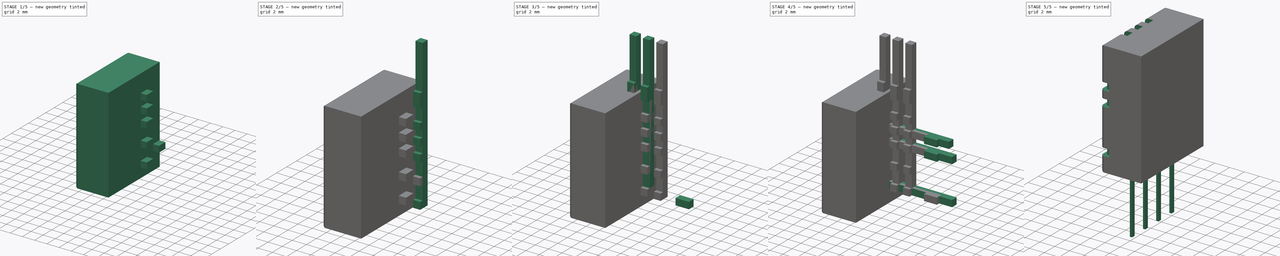
[diagram: build sequence overview — one tinted view per stage of 5, left to right]
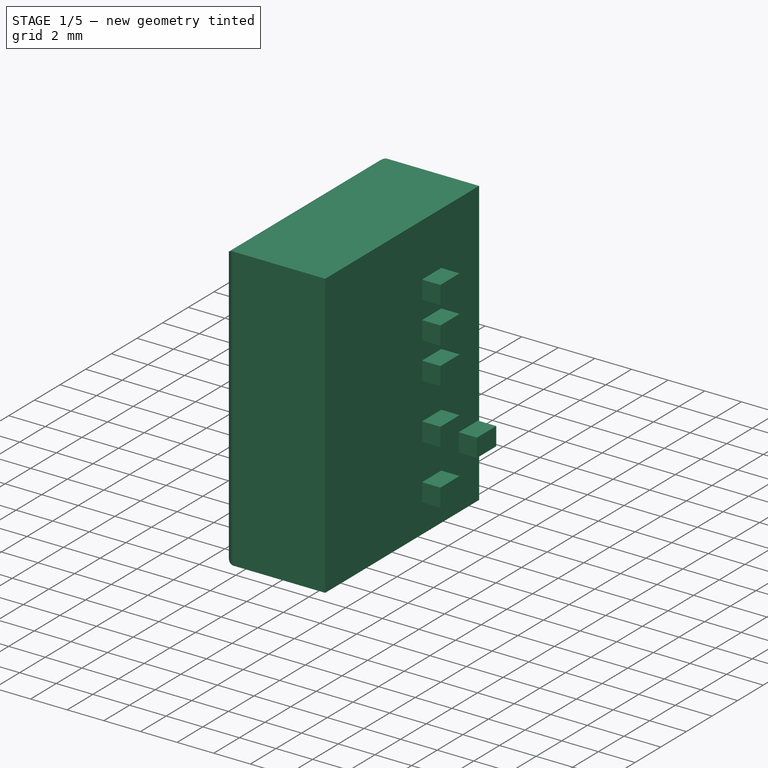
[diagram: stage 1 of 5 — iso view after this stage's code; geometry added in this stage tinted green]
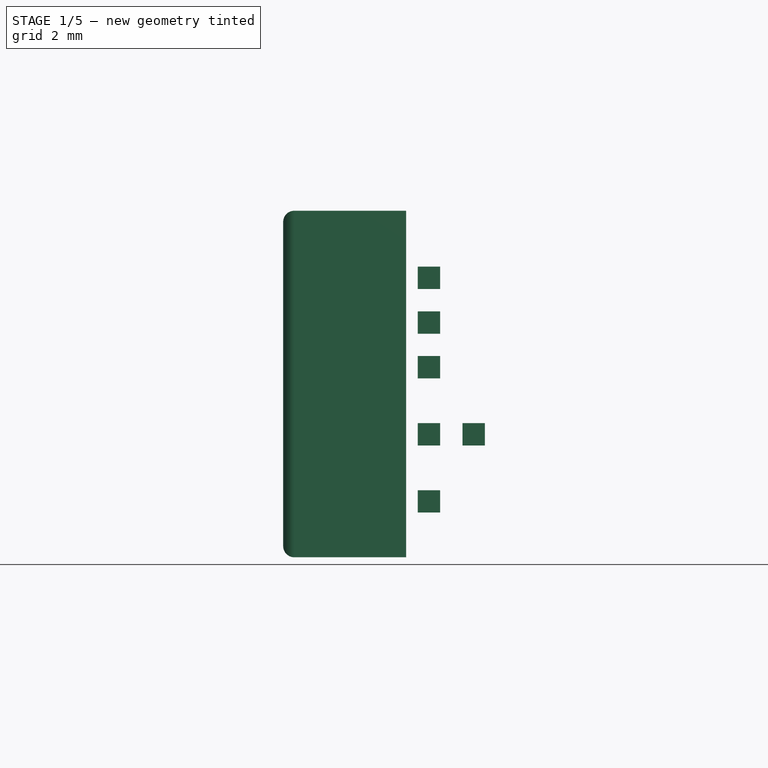
[diagram: stage 1 of 5 — front view after this stage's code; geometry added in this stage tinted green]
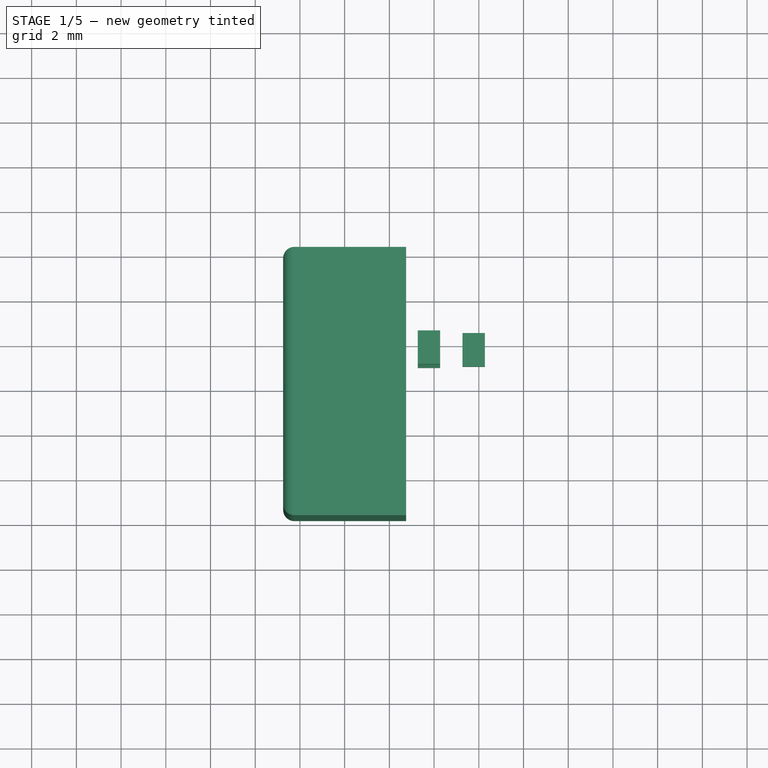
[diagram: stage 1 of 5 — top view after this stage's code; geometry added in this stage tinted green]
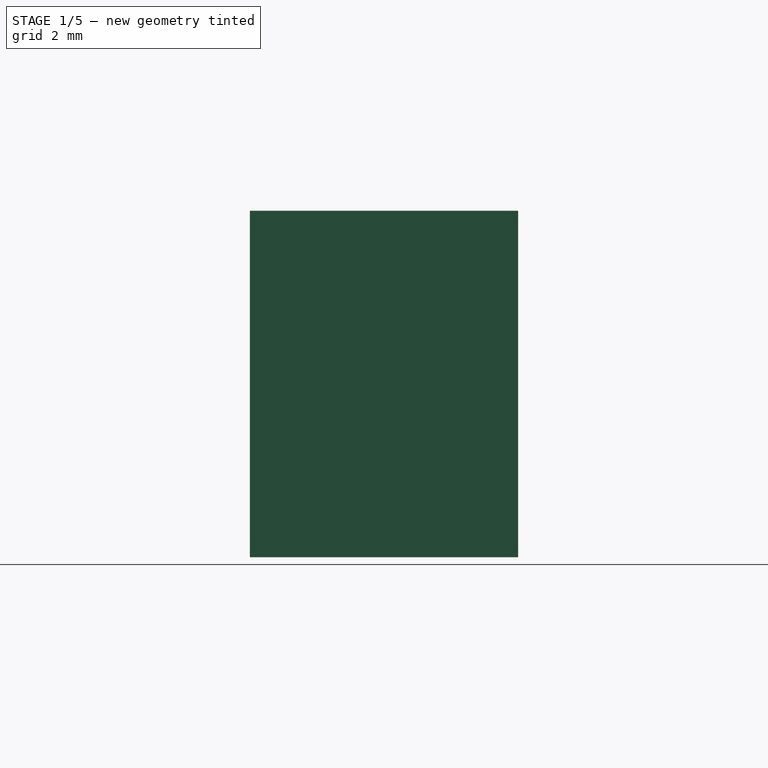
[diagram: stage 1 of 5 — right view after this stage's code; geometry added in this stage tinted green]
FCSTD DOCUMENT  (FreeCAD 0.17R11223 (Git))
Label: Aosong_DHT11_5.5x12.0_P2.54mm
License: All rights reserved
LicenseURL: http://en.wikipedia.org/wiki/All_rights_reserved
objects: Part::Box×36, Part::MultiFuse×8, Sketcher::SketchObject×1, PartDesign::Pad×1, PartDesign::Body×1, Part::Fillet×1, Part::Cut×1
note: 50 computed .brp shape members not serialized (recipe doc carries the construction recipe); baked Part::Feature solids carry a one-line shape summary decoded from their .brp

FEATURE [Sketcher::SketchObject] Sketch
  MapMode = 5
  Support = -> [XY_Plane]
  sketch-geometry (4):
    g0: LineSegment StartX=-2.75 StartY=2.19 StartZ=0 EndX=2.75 EndY=2.19 EndZ=0
    g1: LineSegment StartX=2.75 StartY=2.19 StartZ=0 EndX=2.75 EndY=-9.81 EndZ=0
    g2: LineSegment StartX=2.75 StartY=-9.81 StartZ=0 EndX=-2.75 EndY=-9.81 EndZ=0
    g3: LineSegment StartX=-2.75 StartY=-9.81 StartZ=0 EndX=-2.75 EndY=2.19 EndZ=0
  constraints (12):
    c: Coincident(g0,g1)
    c: Coincident(g1,g2)
    c: Coincident(g2,g3)
    c: Coincident(g3,g0)
    c: Horizontal(g0)
    c: Horizontal(g2)
    c: Vertical(g1)
    c: Vertical(g3)
    c: DistanceX(g0,g0) = 5.5
    c: DistanceY(g1,g0) = 12
    c: DistanceY(g-1,g0) = 2.19
    c: DistanceX(g0,g-1) = 2.75
FEATURE [PartDesign::Pad] Pad
  Length = 15.5
  Length2 = 100
  Profile = -> Sketch
  Type = 0
FEATURE [Part::Box] Box027  label="Kub023"
  AttacherType = Attacher::AttachEngine3D
  Height = 1
  Length = 1
  Placement = pos=(1.27,-3,5) rot=(0,0,1;0rad)
  Width = 1.5
FEATURE [Part::Box] Box028  label="Kub024"
  AttacherType = Attacher::AttachEngine3D
  Height = 1
  Length = 1
  Placement = pos=(5.27,-3,5) rot=(0,0,1;0rad)
  Width = 1.5
FEATURE [Part::Box] Box029  label="Kub025"
  AttacherType = Attacher::AttachEngine3D
  Height = 1
  Length = 1
  Placement = pos=(3.27,-3,2) rot=(0,0,1;0rad)
  Width = 1.5
FEATURE [Part::Box] Box030  label="Kub026"
  AttacherType = Attacher::AttachEngine3D
  Height = 1
  Length = 1
  Placement = pos=(3.27,-3,5) rot=(0,0,1;0rad)
  Width = 1.5
FEATURE [Part::Box] Box031  label="Kub027"
  AttacherType = Attacher::AttachEngine3D
  Height = 1
  Length = 1
  Placement = pos=(3.27,-3,8) rot=(0,0,1;0rad)
  Width = 1.5
FEATURE [Part::Box] Box032  label="Kub028"
  AttacherType = Attacher::AttachEngine3D
  Height = 1
  Length = 1
  Placement = pos=(3.27,-3,10) rot=(0,0,1;0rad)
  Width = 1.5
FEATURE [Part::Box] Box033  label="Kub029"
  AttacherType = Attacher::AttachEngine3D
  Height = 1
  Length = 1
  Placement = pos=(3.27,-3,12) rot=(0,0,1;0rad)
  Width = 1.5
FEATURE [Part::Fillet] Fillet
  Base = -> Pad
  Edges = 4 edges r=0.5: [Edge1,Edge8,Edge11,Edge12]
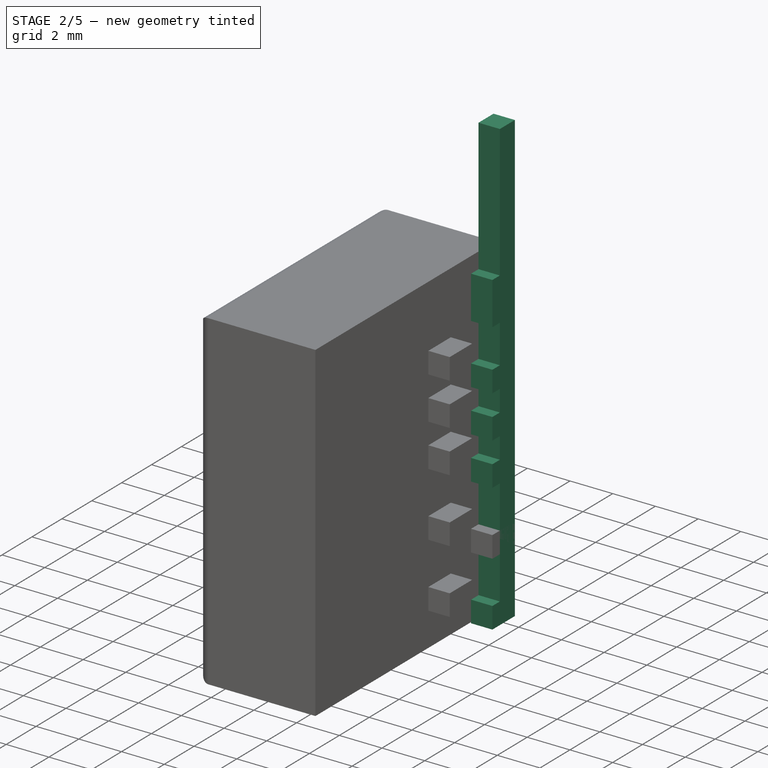
[diagram: stage 2 of 5 — iso view after this stage's code; geometry added in this stage tinted green]
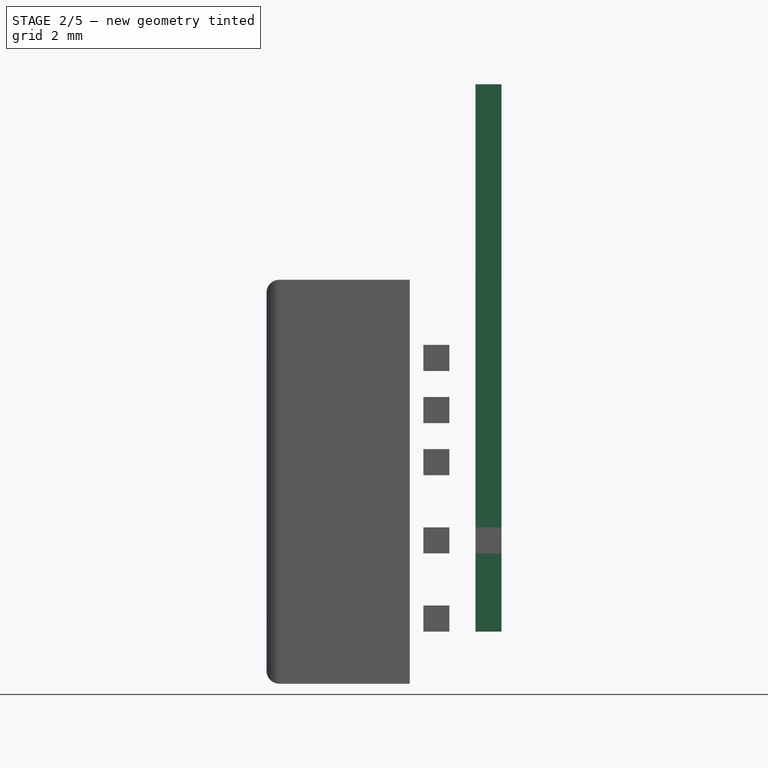
[diagram: stage 2 of 5 — front view after this stage's code; geometry added in this stage tinted green]
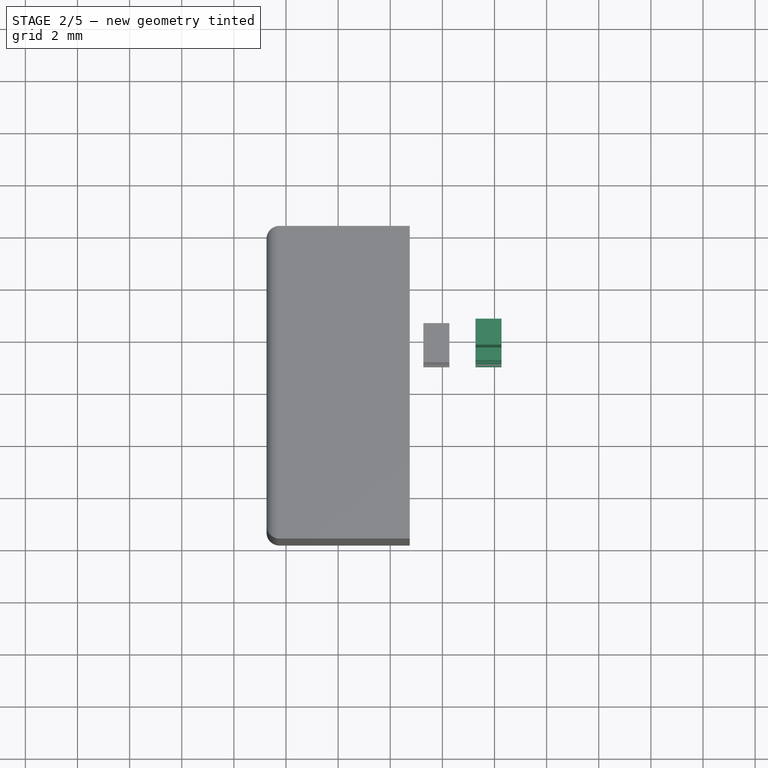
[diagram: stage 2 of 5 — top view after this stage's code; geometry added in this stage tinted green]
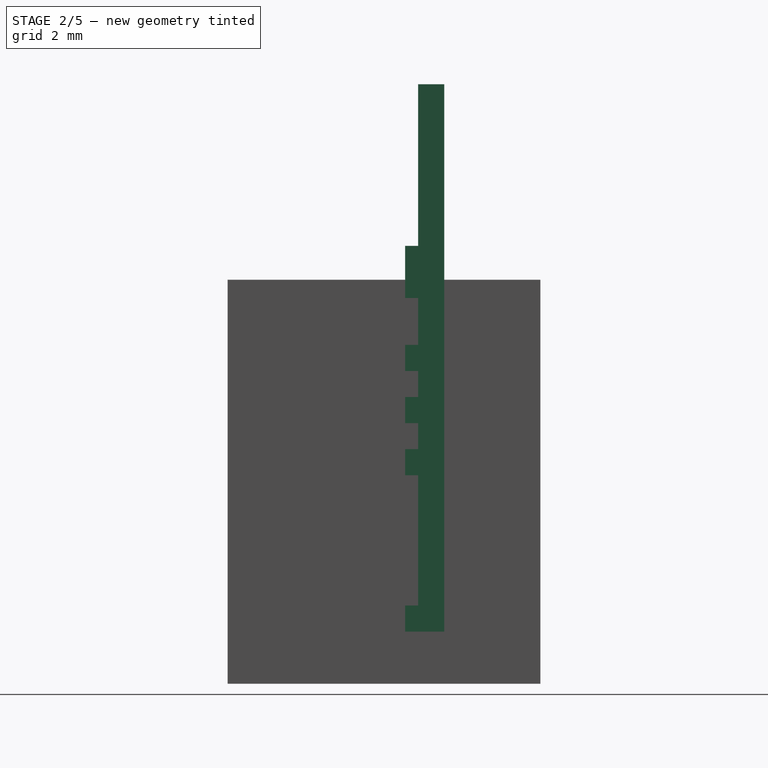
[diagram: stage 2 of 5 — right view after this stage's code; geometry added in this stage tinted green]
FEATURE [Part::Box] Box008  label="Kub004"
  AttacherType = Attacher::AttachEngine3D
  Height = 20
  Length = 1
  Placement = pos=(5.27,-2.5,3) rot=(0,0,1;0rad)
  Width = 1
FEATURE [Part::Box] Box016  label="Kub012"
  AttacherType = Attacher::AttachEngine3D
  Height = 2
  Length = 1
  Placement = pos=(5.27,-3,14.8) rot=(0,0,1;0rad)
  Width = 1
FEATURE [Part::Box] Box019  label="Kub015"
  AttacherType = Attacher::AttachEngine3D
  Height = 1
  Length = 1
  Placement = pos=(5.27,-3,12) rot=(0,0,1;0rad)
  Width = 1.5
FEATURE [Part::Box] Box020  label="Kub016"
  AttacherType = Attacher::AttachEngine3D
  Height = 1
  Length = 1
  Placement = pos=(5.27,-3,10) rot=(0,0,1;0rad)
  Width = 1.5
FEATURE [Part::Box] Box021  label="Kub017"
  AttacherType = Attacher::AttachEngine3D
  Height = 1
  Length = 1
  Placement = pos=(5.27,-3,8) rot=(0,0,1;0rad)
  Width = 1.5
FEATURE [Part::Box] Box022  label="Kub018"
  AttacherType = Attacher::AttachEngine3D
  Height = 1
  Length = 1
  Placement = pos=(5.27,-3,2) rot=(0,0,1;0rad)
  Width = 1.5
FEATURE [Part::Box] Box023  label="Kub019"
  AttacherType = Attacher::AttachEngine3D
  Height = 1
  Length = 1
  Placement = pos=(1.27,-3,12) rot=(0,0,1;0rad)
  Width = 1.5
FEATURE [Part::Box] Box024  label="Kub020"
  AttacherType = Attacher::AttachEngine3D
  Height = 1
  Length = 1
  Placement = pos=(1.27,-3,10) rot=(0,0,1;0rad)
  Width = 1.5
FEATURE [Part::Box] Box025  label="Kub021"
  AttacherType = Attacher::AttachEngine3D
  Height = 1
  Length = 1
  Placement = pos=(1.27,-3,8) rot=(0,0,1;0rad)
  Width = 1.5
FEATURE [Part::Box] Box026  label="Kub022"
  AttacherType = Attacher::AttachEngine3D
  Height = 1
  Length = 1
  Placement = pos=(1.27,-3,2) rot=(0,0,1;0rad)
  Width = 1.5
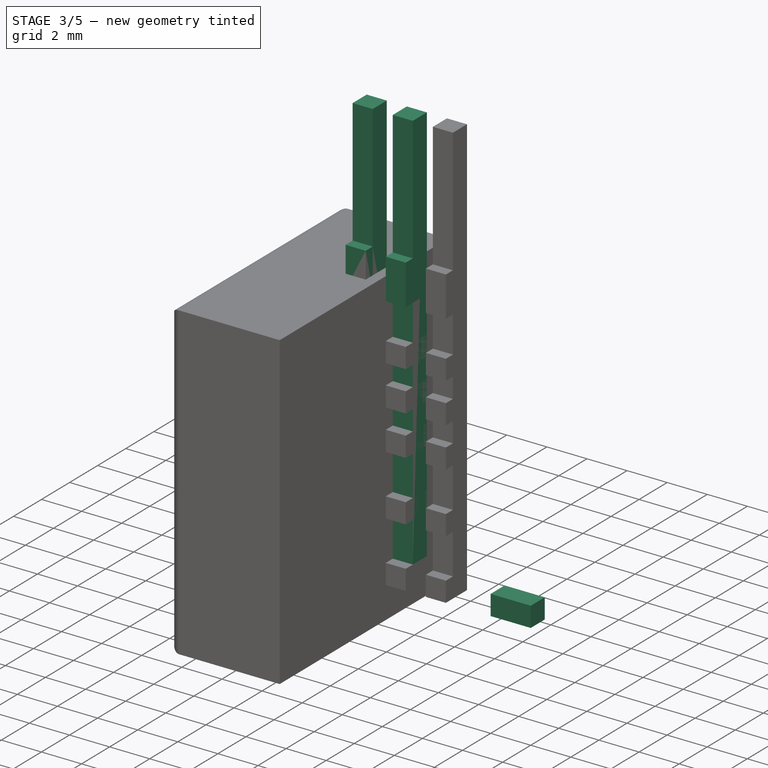
[diagram: stage 3 of 5 — iso view after this stage's code; geometry added in this stage tinted green]
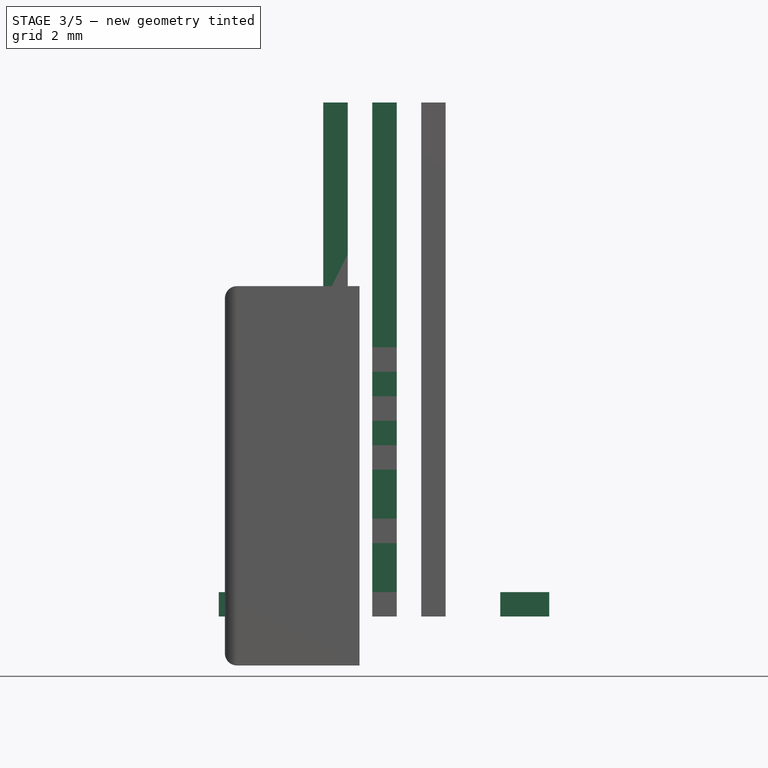
[diagram: stage 3 of 5 — front view after this stage's code; geometry added in this stage tinted green]
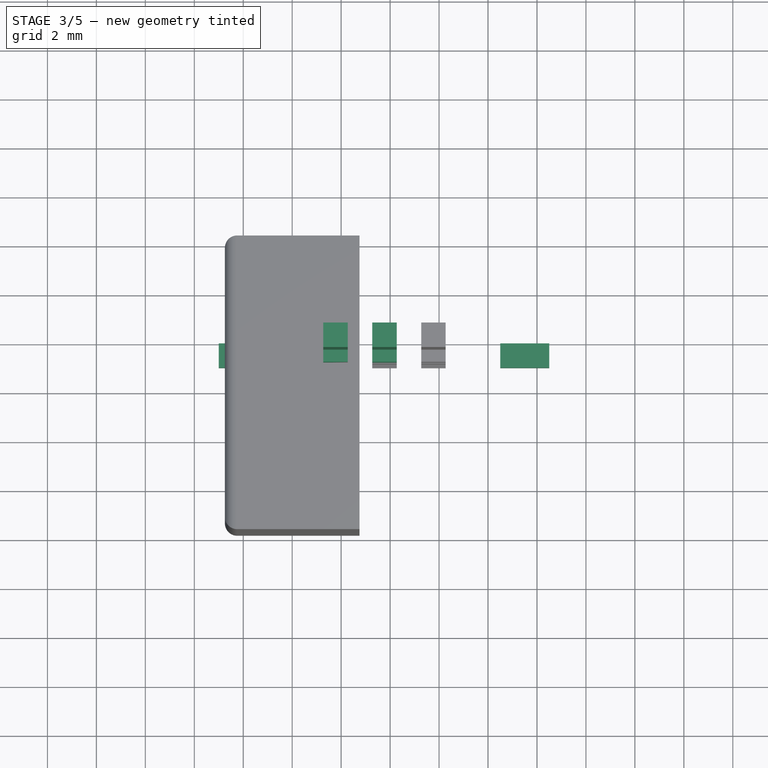
[diagram: stage 3 of 5 — top view after this stage's code; geometry added in this stage tinted green]
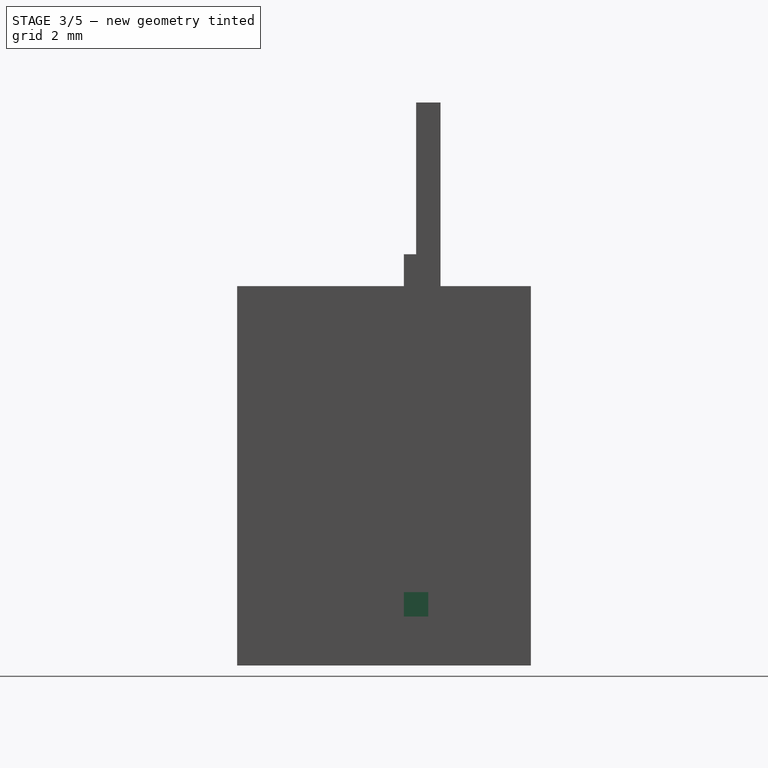
[diagram: stage 3 of 5 — right view after this stage's code; geometry added in this stage tinted green]
FEATURE [Part::Box] Box007  label="Kub003"
  AttacherType = Attacher::AttachEngine3D
  Height = 20
  Length = 1
  Placement = pos=(3.27,-2.5,3) rot=(0,0,1;0rad)
  Width = 1
FEATURE [Part::Box] Box009  label="Kub005"
  AttacherType = Attacher::AttachEngine3D
  Height = 20
  Length = 1
  Placement = pos=(1.27,-2.5,3) rot=(0,0,1;0rad)
  Width = 1
FEATURE [Part::Box] Box010  label="Kub006"
  AttacherType = Attacher::AttachEngine3D
  Height = 1
  Length = 2
  Placement = pos=(-3,-3,2) rot=(0,0,1;0rad)
  Width = 1
FEATURE [Part::Box] Box011  label="Kub007"
  AttacherType = Attacher::AttachEngine3D
  Height = 1
  Length = 2
  Placement = pos=(8.5,-3,2) rot=(0,0,1;0rad)
  Width = 1
FEATURE [Part::Box] Box017  label="Kub013"
  AttacherType = Attacher::AttachEngine3D
  Height = 2
  Length = 1
  Placement = pos=(3.27,-3,14.8) rot=(0,0,1;0rad)
  Width = 1
FEATURE [Part::Box] Box018  label="Kub014"
  AttacherType = Attacher::AttachEngine3D
  Height = 2
  Length = 1
  Placement = pos=(1.27,-3,14.8) rot=(0,0,1;0rad)
  Width = 1
FEATURE [Part::MultiFuse] Fusion003
  Shapes = -> [Box009,Box018]
FEATURE [Part::MultiFuse] Fusion004
  Shapes = -> [Box007,Box017]
FEATURE [Part::MultiFuse] Fusion005
  Shapes = -> [Box008,Box016]
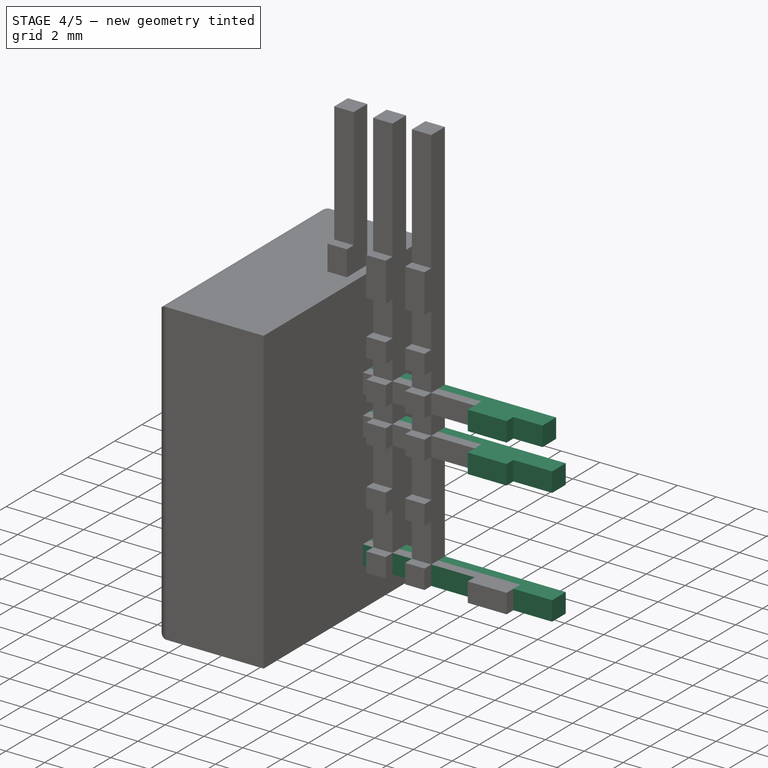
[diagram: stage 4 of 5 — iso view after this stage's code; geometry added in this stage tinted green]
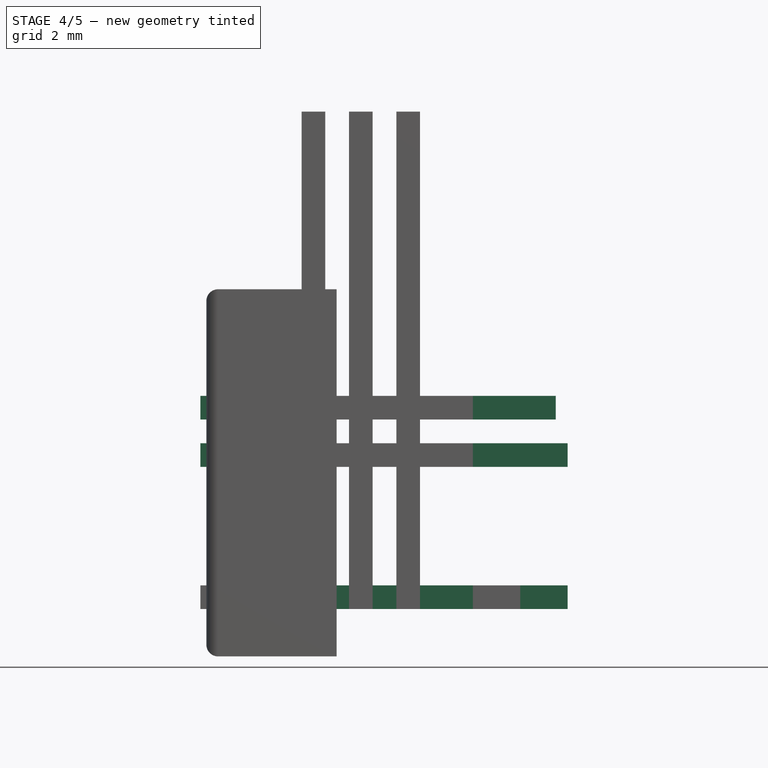
[diagram: stage 4 of 5 — front view after this stage's code; geometry added in this stage tinted green]
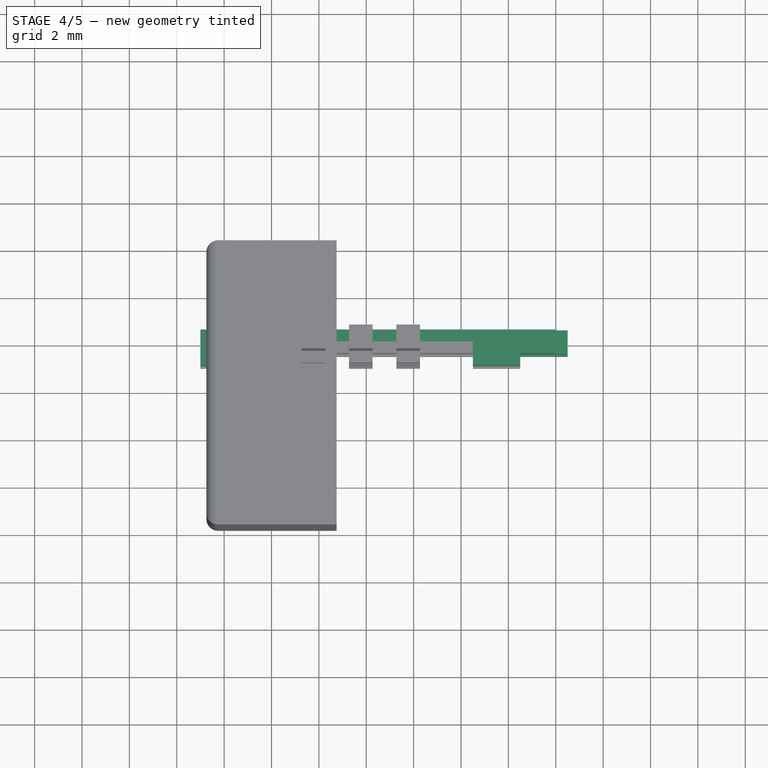
[diagram: stage 4 of 5 — top view after this stage's code; geometry added in this stage tinted green]
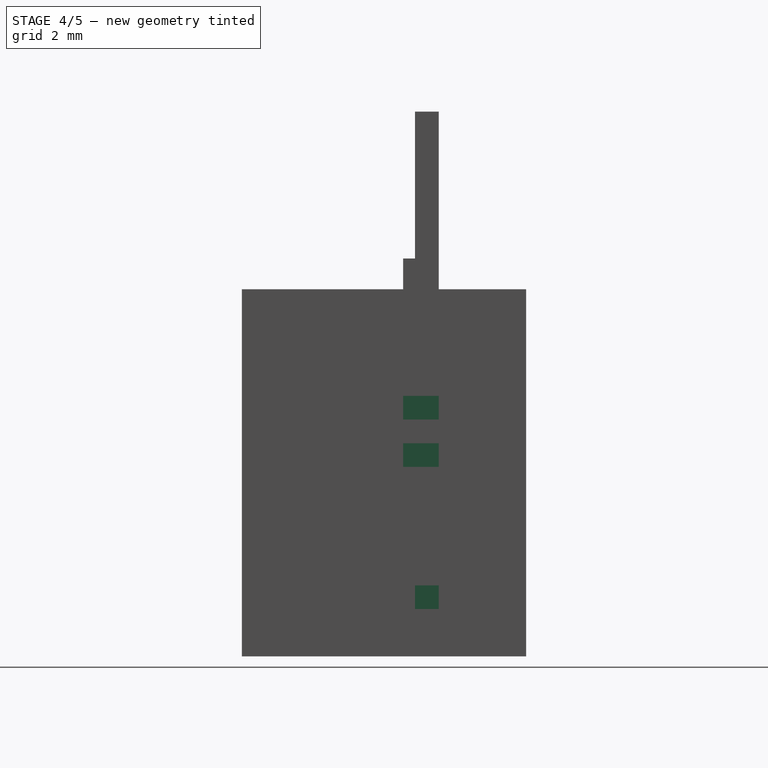
[diagram: stage 4 of 5 — right view after this stage's code; geometry added in this stage tinted green]
FEATURE [Part::Box] Box004  label="Kub"
  AttacherType = Attacher::AttachEngine3D
  Height = 1
  Length = 15
  Placement = pos=(-3,-2.5,10) rot=(0,0,1;0rad)
  Width = 1
FEATURE [Part::Box] Box005  label="Kub001"
  AttacherType = Attacher::AttachEngine3D
  Height = 1
  Length = 15
  Placement = pos=(-2.5,-2.5,8) rot=(0,0,1;0rad)
  Width = 1
FEATURE [Part::Box] Box006  label="Kub002"
  AttacherType = Attacher::AttachEngine3D
  Height = 1
  Length = 15
  Placement = pos=(-2.5,-2.5,2) rot=(0,0,1;0rad)
  Width = 1
FEATURE [Part::Box] Box012  label="Kub008"
  AttacherType = Attacher::AttachEngine3D
  Height = 1
  Length = 2
  Placement = pos=(-3,-3,8) rot=(0,0,1;0rad)
  Width = 1
FEATURE [Part::Box] Box013  label="Kub009"
  AttacherType = Attacher::AttachEngine3D
  Height = 1
  Length = 2
  Placement = pos=(-3,-3,10) rot=(0,0,1;0rad)
  Width = 1
FEATURE [Part::Box] Box014  label="Kub010"
  AttacherType = Attacher::AttachEngine3D
  Height = 1
  Length = 2
  Placement = pos=(8.5,-3,8) rot=(0,0,1;0rad)
  Width = 1
FEATURE [Part::Box] Box015  label="Kub011"
  AttacherType = Attacher::AttachEngine3D
  Height = 1
  Length = 2
  Placement = pos=(8.5,-3,10) rot=(0,0,1;0rad)
  Width = 1
FEATURE [Part::MultiFuse] Fusion
  Shapes = -> [Box004,Box015,Box013]
FEATURE [Part::MultiFuse] Fusion001
  Shapes = -> [Box005,Box014,Box012]
FEATURE [Part::MultiFuse] Fusion002
  Shapes = -> [Box006,Box011,Box010]
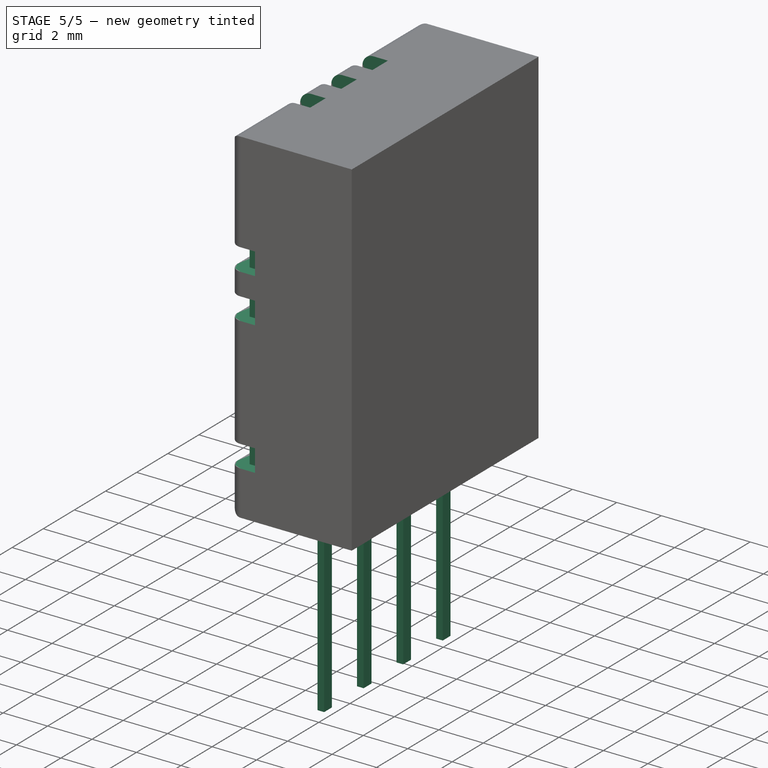
[diagram: stage 5 of 5 — iso view after this stage's code; geometry added in this stage tinted green]
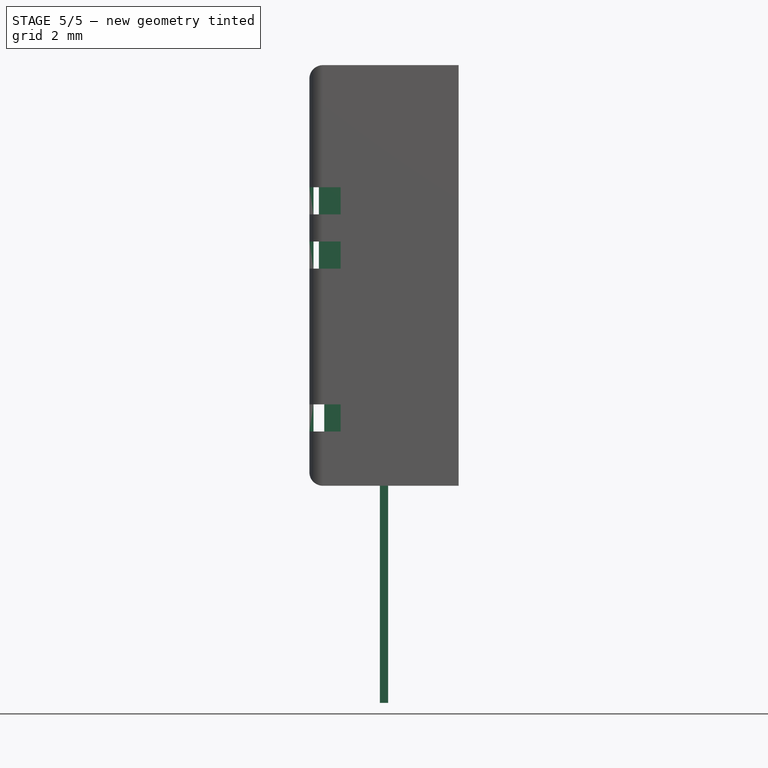
[diagram: stage 5 of 5 — front view after this stage's code; geometry added in this stage tinted green]
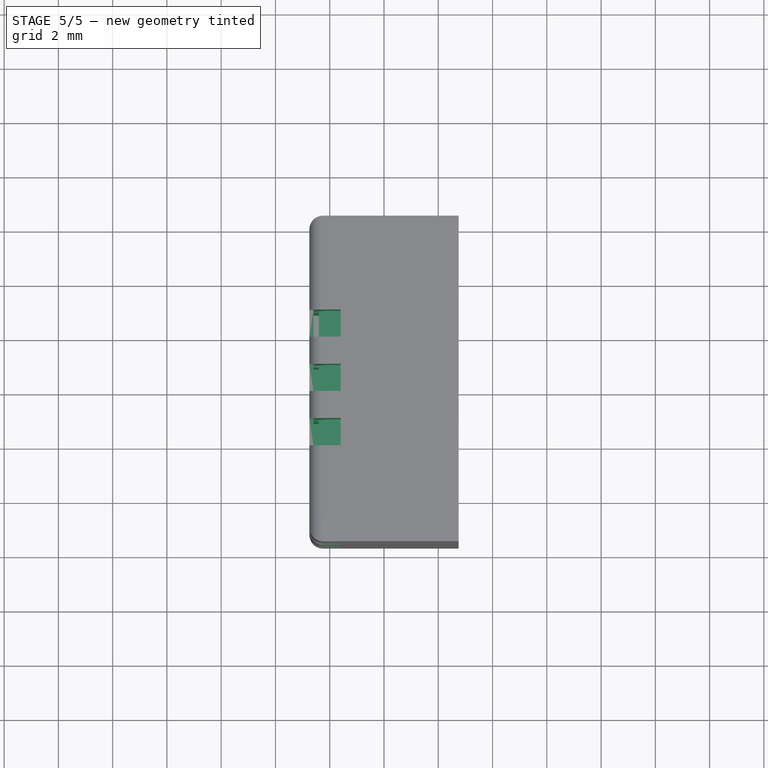
[diagram: stage 5 of 5 — top view after this stage's code; geometry added in this stage tinted green]
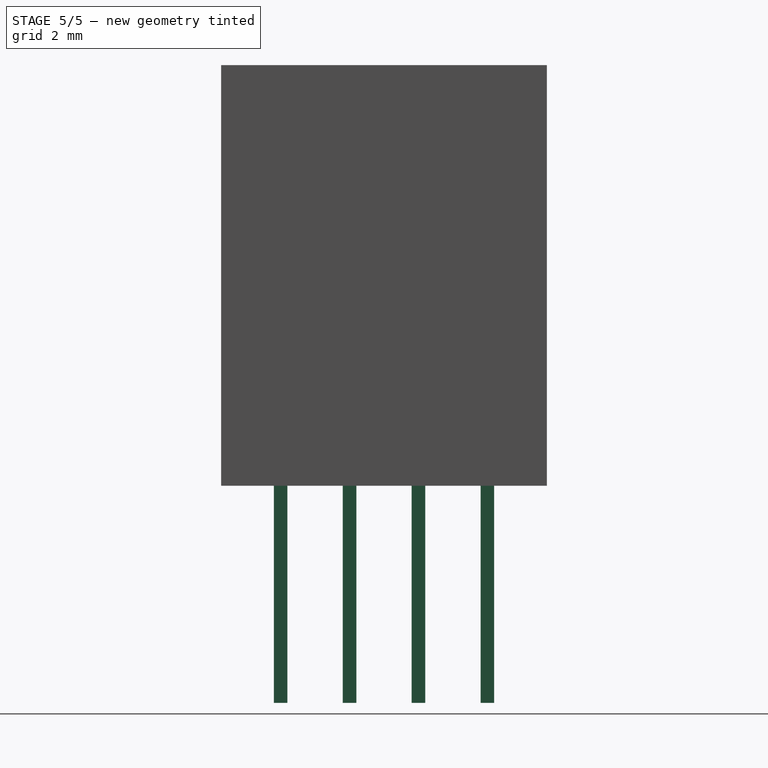
[diagram: stage 5 of 5 — right view after this stage's code; geometry added in this stage tinted green]
FEATURE [PartDesign::Body] Body
  Group = -> [Sketch,Pad]
  Origin = -> BodyOrigin
  Tip = -> Pad
FEATURE [Part::Box] Box  label="Pin1"
  AttacherType = Attacher::AttachEngine3D
  Height = 8.2
  Length = 0.3
  Placement = pos=(-0.15,-0.25,-8) rot=(0,0,1;0rad)
  Width = 0.5
FEATURE [Part::Box] Box034  label="Kub030"
  AttacherType = Attacher::AttachEngine3D
  Height = 8
  Length = 3
  Placement = pos=(-2.4,-8,4) rot=(0,0,1;0rad)
  Width = 9
FEATURE [Part::Box] Box035  label="Pin002"
  AttacherType = Attacher::AttachEngine3D
  Height = 8.2
  Length = 0.3
  Placement = pos=(-0.15,-2.79,-8) rot=(0,0,1;0rad)
  Width = 0.5
FEATURE [Part::Box] Box036  label="Pin003"
  AttacherType = Attacher::AttachEngine3D
  Height = 8.2
  Length = 0.3
  Placement = pos=(-0.15,-5.33,-8) rot=(0,0,1;0rad)
  Width = 0.5
FEATURE [Part::Box] Box037  label="Pin004"
  AttacherType = Attacher::AttachEngine3D
  Height = 8.2
  Length = 0.3
  Placement = pos=(-0.15,-7.87,-8) rot=(0,0,1;0rad)
  Width = 0.5
FEATURE [Part::Box] Box038  label="Kub031"
  AttacherType = Attacher::AttachEngine3D
  Height = 12
  Length = 2
  Placement = pos=(-2.2,-9.3,1) rot=(0,0,1;0rad)
  Width = 11
FEATURE [Part::MultiFuse] Fusion007  label="Inside"
  Shapes = -> [Box038,Box034]
FEATURE [Part::MultiFuse] Fusion008  label="Holes"
  Placement = pos=(-0.1,0,0) rot=(0,0,-1;1.5708rad)
  Shapes = -> [Fusion005,Box027,Box025,Box019,Box031,Box022,Box024,Box033,Box023,Box026,Box020,Box028,Box029,Box032,Box021,Box030,Fusion,Fusion001,Fusion004,Fusion003,Fusion002]
FEATURE [Part::Cut] Cut
  Base = -> Fillet
  Tool = -> Fusion008
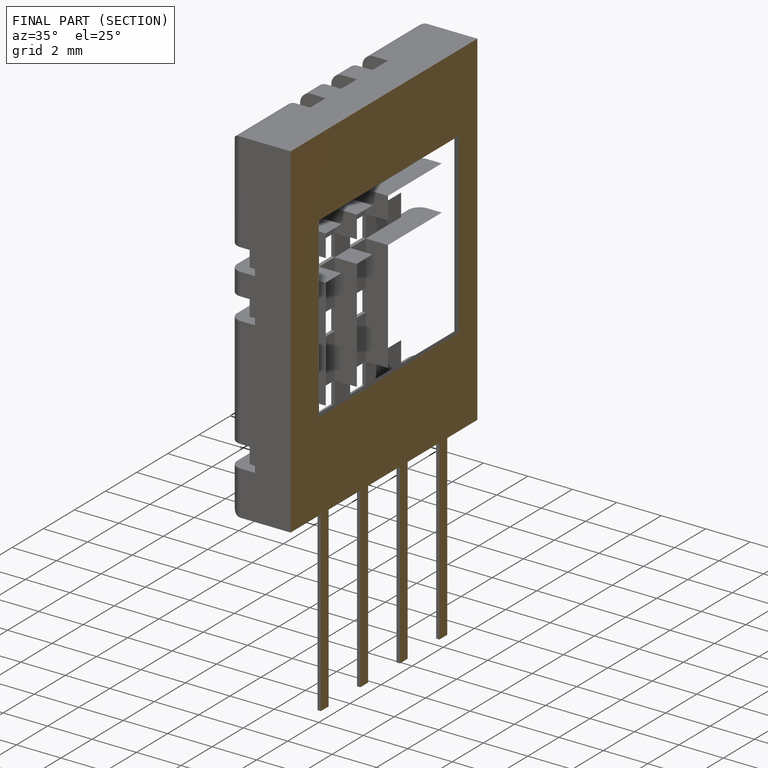
[diagram: finished part — half-section view (interior)]
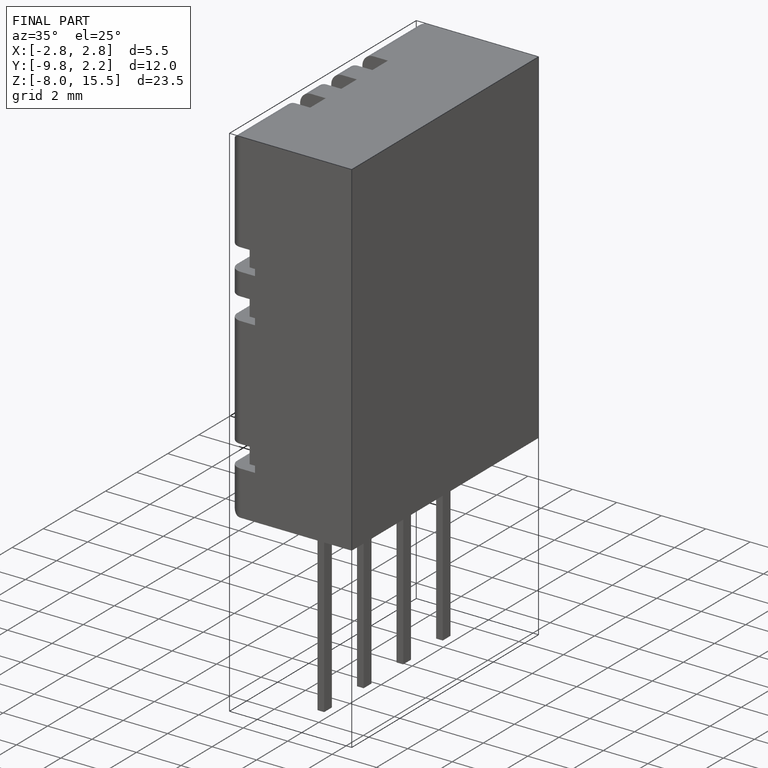
[diagram: finished part — iso view with bounding-box wireframe]
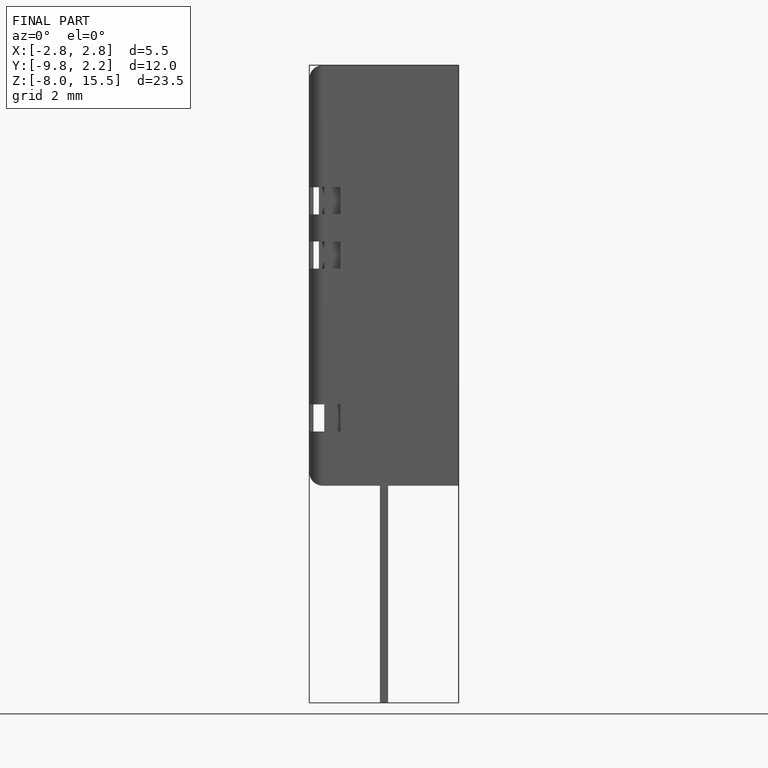
[diagram: finished part — front view with bounding-box wireframe]
